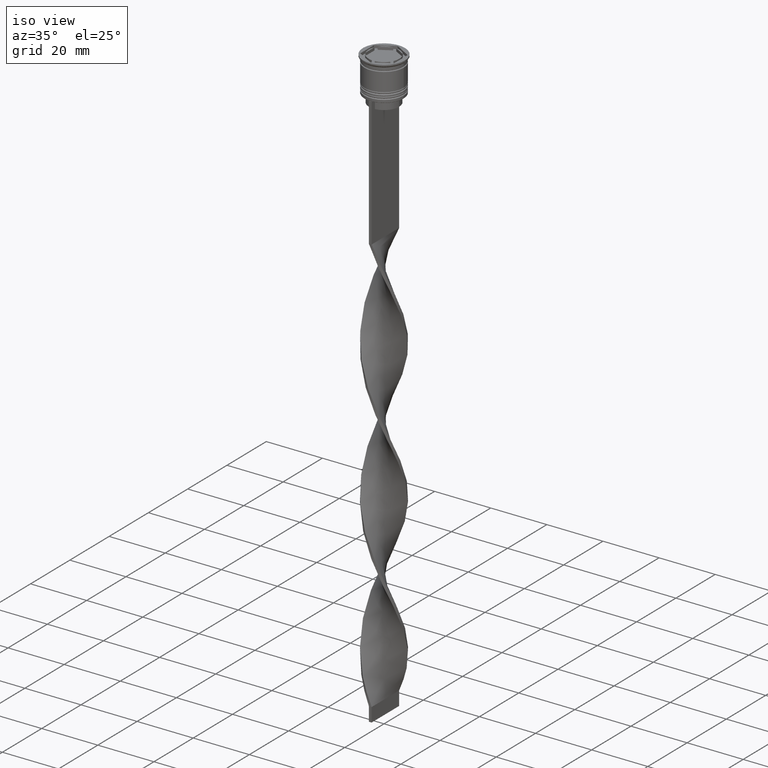
[diagram: clean part render]
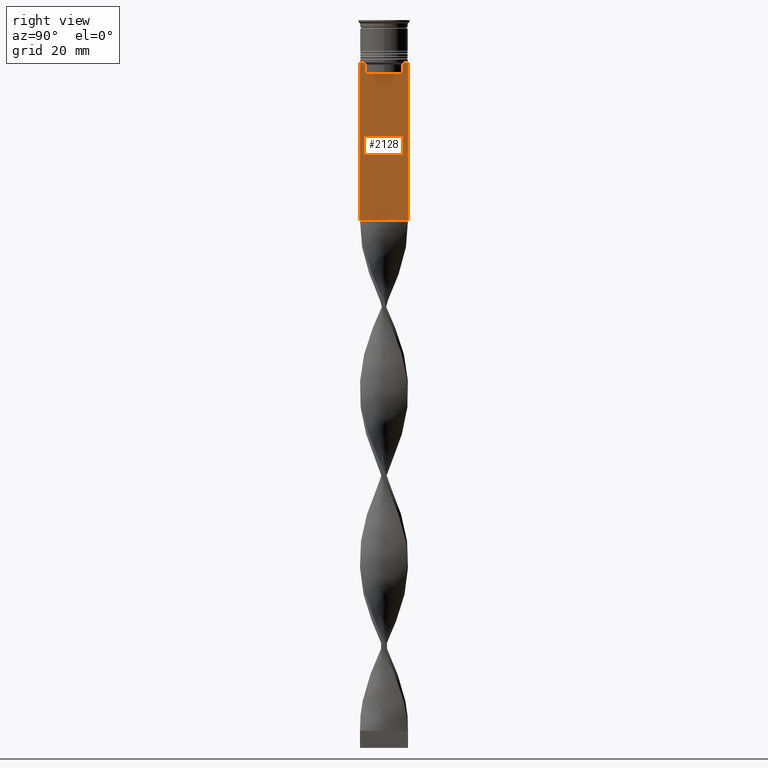
[diagram: tour spotlight — one face highlighted and labeled with its STEP entity id]
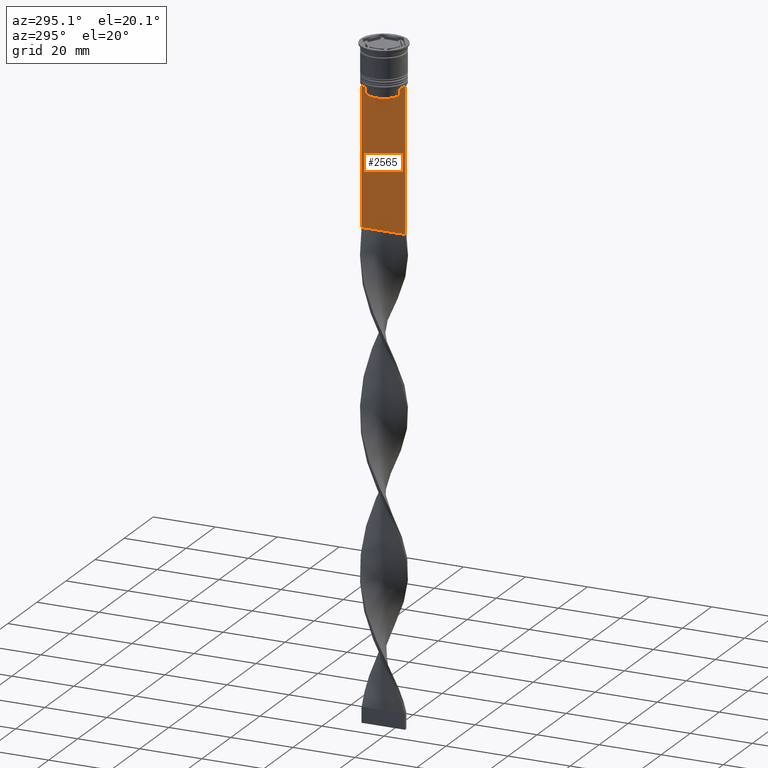
[diagram: tour spotlight — one face highlighted and labeled with its STEP entity id]
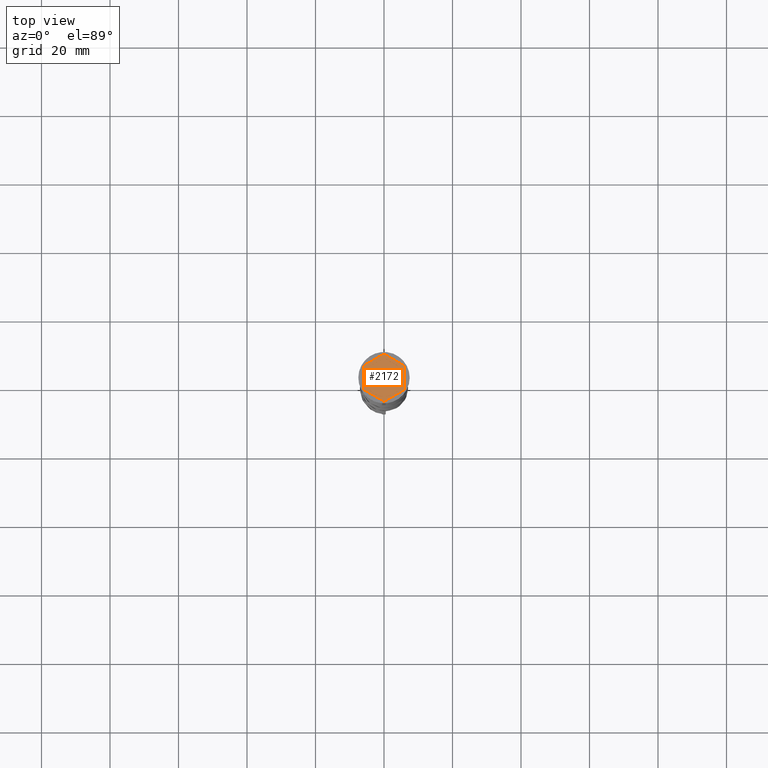
[diagram: tour spotlight — one face highlighted and labeled with its STEP entity id]
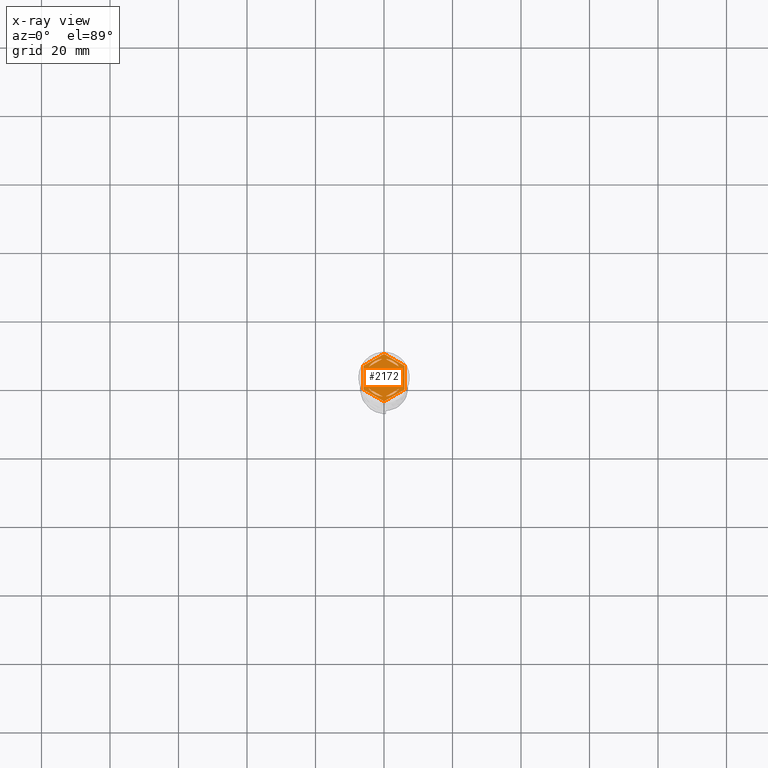
[diagram: x-ray of the same camera — body ghosted, this tour face saturated]
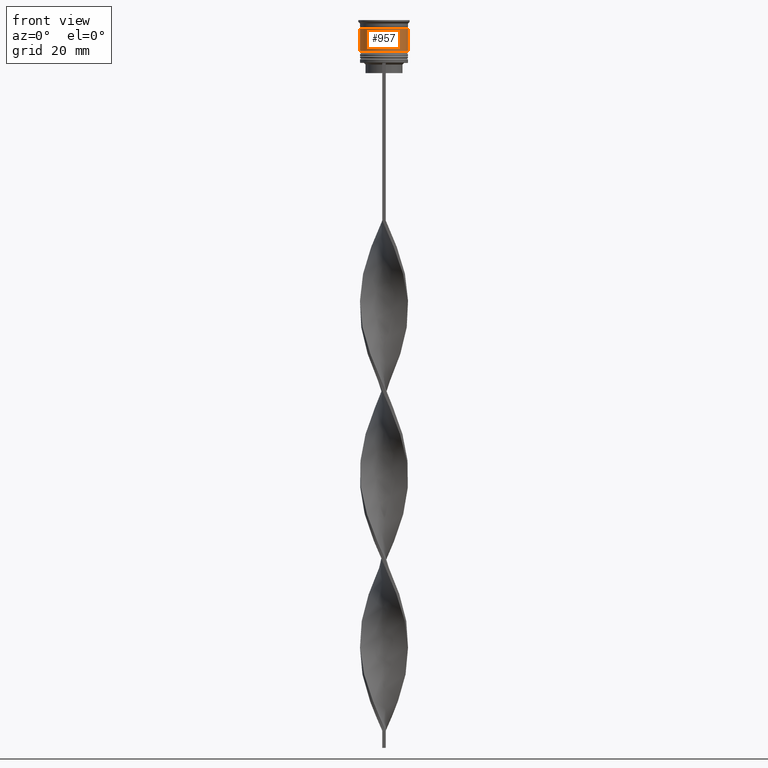
[diagram: tour spotlight — one face highlighted and labeled with its STEP entity id]
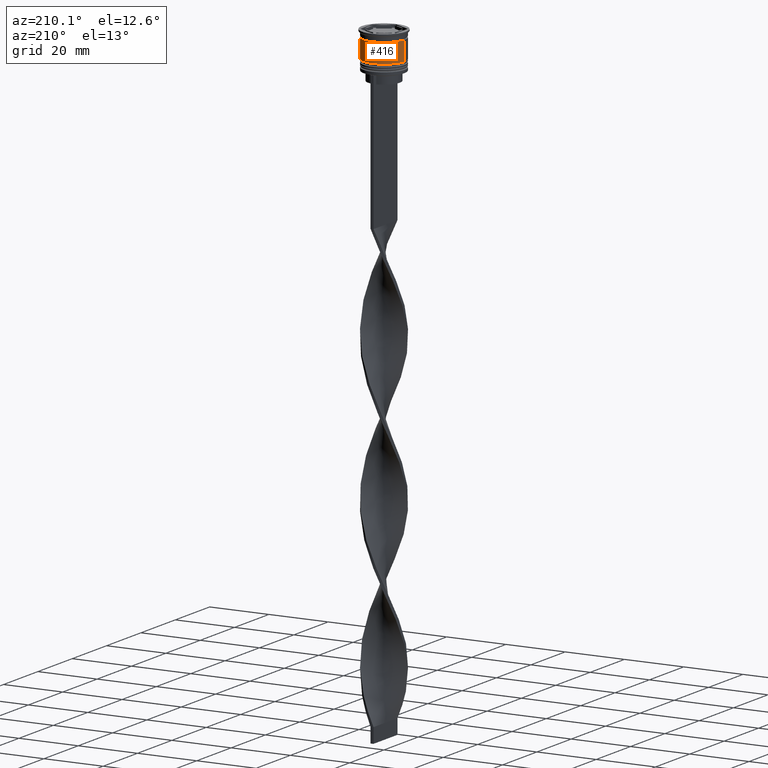
[diagram: tour spotlight — one face highlighted and labeled with its STEP entity id]
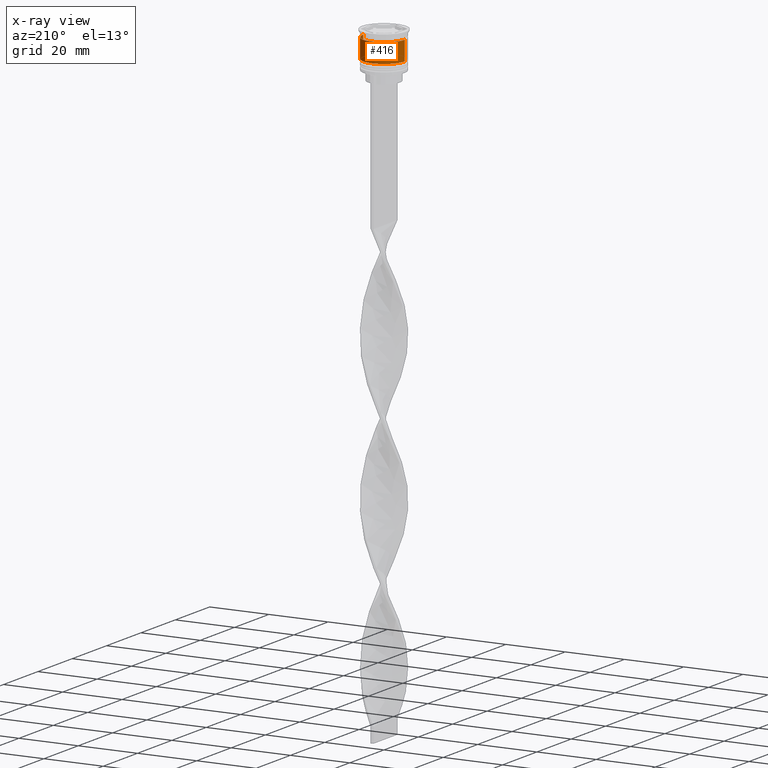
[diagram: x-ray of the same camera — body ghosted, this tour face saturated]
A machine part: a face-by-face anatomy tour. The part has 98 B-rep faces; the first image is the clean iso view, then the 5 largest visible faces are spotlighted one at a time (largest first), each with its STEP entity span.

Face 1 — right view, entity #2128. In plain terms, the highlighted planar face has unit normal (-1, 0, 0).
Definition (entity closure, byte-faithful):
#19 = ORIENTED_EDGE ( 'NONE', *, *, #229, .T. ) ;
#20 = DIRECTION ( 'NONE',  ( -0.000000000000000000, -0.000000000000000000, 1.000000000000000000 ) ) ;
#95 = VERTEX_POINT ( 'NONE', #2700 ) ;
#229 = EDGE_CURVE ( 'NONE', #1521, #2752, #693, .T. ) ;
#236 = ORIENTED_EDGE ( 'NONE', *, *, #3496, .T. ) ;
#250 = LINE ( 'NONE', #2978, #2721 ) ;
#318 = EDGE_CURVE ( 'NONE', #1032, #2752, #2300, .T. ) ;
#458 = VERTEX_POINT ( 'NONE', #3102 ) ;
#480 = VECTOR ( 'NONE', #3802, 1000.000000000000000 ) ;
#686 = VERTEX_POINT ( 'NONE', #1171 ) ;
#693 = LINE ( 'NONE', #1868, #2378 ) ;
#736 = VERTEX_POINT ( 'NONE', #3255 ) ;
#760 = EDGE_CURVE ( 'NONE', #951, #95, #3886, .T. ) ;
#761 = CARTESIAN_POINT ( 'NONE',  ( 0.5000000000000000000, -6.999999999999997335, -12.50000000000000000 ) ) ;
#834 = LINE ( 'NONE', #1174, #480 ) ;
#863 = EDGE_CURVE ( 'NONE', #736, #1866, #3175, .T. ) ;
#887 = EDGE_CURVE ( 'NONE', #458, #3247, #1065, .T. ) ;
#901 = ORIENTED_EDGE ( 'NONE', *, *, #760, .T. ) ;
#951 = VERTEX_POINT ( 'NONE', #1611 ) ;
#968 = CARTESIAN_POINT ( 'NONE',  ( 0.5000000000000000000, 5.711478846560141598, -12.66669470477064685 ) ) ;
#973 = AXIS2_PLACEMENT_3D ( 'NONE', #3862, #3552, #2338 ) ;
#1032 = VERTEX_POINT ( 'NONE', #3702 ) ;
#1065 = LINE ( 'NONE', #1215, #2890 ) ;
#1125 = EDGE_CURVE ( 'NONE', #1606, #736, #1680, .T. ) ;
#1132 = CARTESIAN_POINT ( 'NONE',  ( 0.5000000000000000000, -6.999999999999997335, -12.50000000000000000 ) ) ;
#1171 = CARTESIAN_POINT ( 'NONE',  ( 0.5000000000000000000, 5.376802023508029826, -15.50000000000000000 ) ) ;
#1174 = CARTESIAN_POINT ( 'NONE',  ( 0.5000000000000000000, -6.999999999999997335, -12.50000000000000000 ) ) ;
#1179 = CARTESIAN_POINT ( 'NONE',  ( 0.5000000000000000000, 7.000000000000002665, 1.535668847618198329 ) ) ;
#1215 = CARTESIAN_POINT ( 'NONE',  ( 0.5000000000000000000, -5.376802023508029826, 0.000000000000000000 ) ) ;
#1273 = VERTEX_POINT ( 'NONE', #2343 ) ;
#1293 = ORIENTED_EDGE ( 'NONE', *, *, #1125, .T. ) ;
#1485 = CARTESIAN_POINT ( 'NONE',  ( 0.5000000000000000000, -6.999999999999997335, -58.50000000000000000 ) ) ;
#1521 = VERTEX_POINT ( 'NONE', #1485 ) ;
#1568 = B_SPLINE_CURVE_WITH_KNOTS ( 'NONE', 3,
 ( #2188, #2596, #3094, #2888 ),
 .UNSPECIFIED., .F., .F.,
 ( 4, 4 ),
 ( 0.02539176325380714666, 0.02610162431828674801 ),
 .UNSPECIFIED. ) ;
#1604 = CARTESIAN_POINT ( 'NONE',  ( 0.5000000000000000000, 7.000000000000002665, -58.50000000000000000 ) ) ;
#1606 = VERTEX_POINT ( 'NONE', #1792 ) ;
#1611 = CARTESIAN_POINT ( 'NONE',  ( 0.5000000000000000000, 5.878775382679629402, -12.50000000000000000 ) ) ;
#1679 = EDGE_LOOP ( 'NONE', ( #3415, #901, #3462, #2303, #3031, #3093, #1293, #3266, #3662, #19, #2567, #236 ) ) ;
#1680 = LINE ( 'NONE', #1132, #3253 ) ;
#1703 = CARTESIAN_POINT ( 'NONE',  ( 0.5000000000000000000, 5.376802023508029826, 0.000000000000000000 ) ) ;
#1789 = DIRECTION ( 'NONE',  ( 0.000000000000000000, 0.000000000000000000, -1.000000000000000000 ) ) ;
#1792 = CARTESIAN_POINT ( 'NONE',  ( 0.5000000000000000000, -5.878775382679629402, -12.50000000000000000 ) ) ;
#1866 = VERTEX_POINT ( 'NONE', #2943 ) ;
#1868 = CARTESIAN_POINT ( 'NONE',  ( 0.5000000000000000000, -6.999999999999997335, -58.50000000000000000 ) ) ;
#1872 = CARTESIAN_POINT ( 'NONE',  ( 0.5000000000000000000, 5.544156989057553275, -12.83336397825725861 ) ) ;
#2128 = ADVANCED_FACE ( 'NONE', ( #3154 ), #2864, .F. ) ;
#2142 = VECTOR ( 'NONE', #3586, 1000.000000000000000 ) ;
#2188 = CARTESIAN_POINT ( 'NONE',  ( 0.5000000000000000000, -5.376802023508029826, -13.00000000000000178 ) ) ;
#2198 = VECTOR ( 'NONE', #2696, 1000.000000000000000 ) ;
#2243 = VECTOR ( 'NONE', #1789, 1000.000000000000000 ) ;
#2300 = LINE ( 'NONE', #1179, #2243 ) ;
#2303 = ORIENTED_EDGE ( 'NONE', *, *, #3284, .T. ) ;
#2318 = CARTESIAN_POINT ( 'NONE',  ( 0.5000000000000000000, -6.999999999999997335, -12.50000000000000000 ) ) ;
#2338 = DIRECTION ( 'NONE',  ( 0.000000000000000000, 0.000000000000000000, 1.000000000000000000 ) ) ;
#2343 = CARTESIAN_POINT ( 'NONE',  ( 0.5000000000000000000, 6.881860213634102053, -12.50000000000000000 ) ) ;
#2378 = VECTOR ( 'NONE', #2792, 1000.000000000000000 ) ;
#2493 = CARTESIAN_POINT ( 'NONE',  ( 0.5000000000000000000, 5.878775382679629402, -12.50000000000000000 ) ) ;
#2567 = ORIENTED_EDGE ( 'NONE', *, *, #318, .F. ) ;
#2585 = DIRECTION ( 'NONE',  ( 0.000000000000000000, -1.000000000000000000, 0.000000000000000000 ) ) ;
#2596 = CARTESIAN_POINT ( 'NONE',  ( 0.5000000000000000000, -5.544156999454441959, -12.83336396790503642 ) ) ;
#2608 = DIRECTION ( 'NONE',  ( 0.000000000000000000, 0.000000000000000000, -1.000000000000000000 ) ) ;
#2628 = LINE ( 'NONE', #2318, #3846 ) ;
#2653 = CARTESIAN_POINT ( 'NONE',  ( 0.5000000000000000000, 5.400000000000003908, -15.50000000000000000 ) ) ;
#2696 = DIRECTION ( 'NONE',  ( 0.000000000000000000, -1.000000000000000000, 0.000000000000000000 ) ) ;
#2700 = CARTESIAN_POINT ( 'NONE',  ( 0.5000000000000000000, 5.376802023508029826, -13.00000000000000178 ) ) ;
#2721 = VECTOR ( 'NONE', #2608, 1000.000000000000000 ) ;
#2752 = VERTEX_POINT ( 'NONE', #1604 ) ;
#2792 = DIRECTION ( 'NONE',  ( 0.000000000000000000, 1.000000000000000000, 0.000000000000000000 ) ) ;
#2832 = DIRECTION ( 'NONE',  ( 0.000000000000000000, -1.000000000000000000, 0.000000000000000000 ) ) ;
#2864 = PLANE ( 'NONE',  #973 ) ;
#2888 = CARTESIAN_POINT ( 'NONE',  ( 0.5000000000000000000, -5.878775382679629402, -12.50000000000000000 ) ) ;
#2890 = VECTOR ( 'NONE', #20, 1000.000000000000000 ) ;
#2941 = LINE ( 'NONE', #2653, #2198 ) ;
#2943 = CARTESIAN_POINT ( 'NONE',  ( 0.5000000000000000000, -6.999999999999997335, -12.50000000000000000 ) ) ;
#2978 = CARTESIAN_POINT ( 'NONE',  ( 0.5000000000000000000, -6.999999999999997335, 1.535668847618198329 ) ) ;
#3031 = ORIENTED_EDGE ( 'NONE', *, *, #887, .T. ) ;
#3057 = CARTESIAN_POINT ( 'NONE',  ( 0.5000000000000000000, 5.376802023508029826, -13.00000000000000178 ) ) ;
#3093 = ORIENTED_EDGE ( 'NONE', *, *, #3881, .T. ) ;
#3094 = CARTESIAN_POINT ( 'NONE',  ( 0.5000000000000000000, -5.711478856069293286, -12.66669469529570335 ) ) ;
#3102 = CARTESIAN_POINT ( 'NONE',  ( 0.5000000000000000000, -5.376802023508029826, -15.50000000000000000 ) ) ;
#3154 = FACE_OUTER_BOUND ( 'NONE', #1679, .T. ) ;
#3175 = LINE ( 'NONE', #761, #3644 ) ;
#3247 = VERTEX_POINT ( 'NONE', #3853 ) ;
#3253 = VECTOR ( 'NONE', #2585, 1000.000000000000000 ) ;
#3255 = CARTESIAN_POINT ( 'NONE',  ( 0.5000000000000000000, -6.881860213634102053, -12.50000000000000000 ) ) ;
#3266 = ORIENTED_EDGE ( 'NONE', *, *, #863, .T. ) ;
#3284 = EDGE_CURVE ( 'NONE', #686, #458, #2941, .T. ) ;
#3285 = LINE ( 'NONE', #1703, #2142 ) ;
#3415 = ORIENTED_EDGE ( 'NONE', *, *, #3447, .T. ) ;
#3420 = EDGE_CURVE ( 'NONE', #1866, #1521, #250, .T. ) ;
#3447 = EDGE_CURVE ( 'NONE', #1273, #951, #2628, .T. ) ;
#3462 = ORIENTED_EDGE ( 'NONE', *, *, #3475, .T. ) ;
#3475 = EDGE_CURVE ( 'NONE', #95, #686, #3285, .T. ) ;
#3496 = EDGE_CURVE ( 'NONE', #1032, #1273, #834, .T. ) ;
#3519 = DIRECTION ( 'NONE',  ( 0.000000000000000000, -1.000000000000000000, 0.000000000000000000 ) ) ;
#3552 = DIRECTION ( 'NONE',  ( -1.000000000000000000, 0.000000000000000000, 0.000000000000000000 ) ) ;
#3586 = DIRECTION ( 'NONE',  ( 0.000000000000000000, 0.000000000000000000, -1.000000000000000000 ) ) ;
#3644 = VECTOR ( 'NONE', #2832, 1000.000000000000000 ) ;
#3662 = ORIENTED_EDGE ( 'NONE', *, *, #3420, .T. ) ;
#3702 = CARTESIAN_POINT ( 'NONE',  ( 0.5000000000000000000, 7.000000000000002665, -12.50000000000000000 ) ) ;
#3802 = DIRECTION ( 'NONE',  ( 0.000000000000000000, -1.000000000000000000, 0.000000000000000000 ) ) ;
#3846 = VECTOR ( 'NONE', #3519, 1000.000000000000000 ) ;
#3853 = CARTESIAN_POINT ( 'NONE',  ( 0.5000000000000000000, -5.376802023508029826, -13.00000000000000178 ) ) ;
#3862 = CARTESIAN_POINT ( 'NONE',  ( 0.5000000000000000000, -6.999999999999997335, 1.535668847618198329 ) ) ;
#3881 = EDGE_CURVE ( 'NONE', #3247, #1606, #1568, .T. ) ;
#3886 = B_SPLINE_CURVE_WITH_KNOTS ( 'NONE', 3,
 ( #2493, #968, #1872, #3057 ),
 .UNSPECIFIED., .F., .F.,
 ( 4, 4 ),
 ( 0.01003009312103698807, 0.01073859663834952557 ),
 .UNSPECIFIED. ) ;

Face 2 — auxiliary view, entity #2565. In plain terms, the highlighted planar face has unit normal (-1, 0, 0).
Definition (entity closure, byte-faithful):
#9 = CARTESIAN_POINT ( 'NONE',  ( -0.5000000000000000000, -6.999999999999997335, -58.50000000000000000 ) ) ;
#18 = VECTOR ( 'NONE', #2358, 1000.000000000000000 ) ;
#49 = LINE ( 'NONE', #384, #2019 ) ;
#62 = VERTEX_POINT ( 'NONE', #3635 ) ;
#119 = DIRECTION ( 'NONE',  ( 0.000000000000000000, 0.000000000000000000, -1.000000000000000000 ) ) ;
#180 = ORIENTED_EDGE ( 'NONE', *, *, #2548, .F. ) ;
#188 = CARTESIAN_POINT ( 'NONE',  ( -0.5000000000000000000, -5.376802023508029826, -13.00000000000000178 ) ) ;
#257 = ORIENTED_EDGE ( 'NONE', *, *, #2376, .F. ) ;
#259 = CARTESIAN_POINT ( 'NONE',  ( -0.5000000000000000000, 7.000000000000002665, -58.50000000000000000 ) ) ;
#288 = PLANE ( 'NONE',  #3268 ) ;
#309 = LINE ( 'NONE', #2953, #18 ) ;
#328 = ORIENTED_EDGE ( 'NONE', *, *, #1383, .F. ) ;
#331 = LINE ( 'NONE', #3538, #3646 ) ;
#336 = CARTESIAN_POINT ( 'NONE',  ( -0.5000000000000000000, 5.878775382679629402, -12.50000000000000000 ) ) ;
#342 = VECTOR ( 'NONE', #119, 1000.000000000000000 ) ;
#384 = CARTESIAN_POINT ( 'NONE',  ( -0.5000000000000000000, 5.376802023508029826, 0.000000000000000000 ) ) ;
#418 = CARTESIAN_POINT ( 'NONE',  ( -0.5000000000000000000, -5.376802023508029826, -15.50000000000000000 ) ) ;
#419 = VECTOR ( 'NONE', #1840, 1000.000000000000000 ) ;
#508 = CARTESIAN_POINT ( 'NONE',  ( -0.5000000000000000000, 5.376802023508029826, -13.00000000000000178 ) ) ;
#586 = DIRECTION ( 'NONE',  ( 0.000000000000000000, -1.000000000000000000, 0.000000000000000000 ) ) ;
#637 = CARTESIAN_POINT ( 'NONE',  ( -0.5000000000000000000, 5.544156989057553275, -12.83336397825725861 ) ) ;
#721 = LINE ( 'NONE', #3087, #342 ) ;
#859 = CARTESIAN_POINT ( 'NONE',  ( -0.5000000000000000000, -5.376802023508029826, -13.00000000000000178 ) ) ;
#884 = VERTEX_POINT ( 'NONE', #1356 ) ;
#1030 = EDGE_CURVE ( 'NONE', #2939, #1901, #721, .T. ) ;
#1090 = ORIENTED_EDGE ( 'NONE', *, *, #2059, .F. ) ;
#1126 = LINE ( 'NONE', #2289, #1592 ) ;
#1189 = CARTESIAN_POINT ( 'NONE',  ( -0.5000000000000000000, -5.376802023508029826, 0.000000000000000000 ) ) ;
#1226 = VECTOR ( 'NONE', #3578, 1000.000000000000000 ) ;
#1227 = CARTESIAN_POINT ( 'NONE',  ( -0.5000000000000000000, -6.999999999999997335, -12.50000000000000000 ) ) ;
#1246 = ORIENTED_EDGE ( 'NONE', *, *, #2219, .F. ) ;
#1295 = EDGE_CURVE ( 'NONE', #1846, #2315, #331, .T. ) ;
#1338 = DIRECTION ( 'NONE',  ( 0.000000000000000000, -1.000000000000000000, 0.000000000000000000 ) ) ;
#1354 = VERTEX_POINT ( 'NONE', #418 ) ;
#1356 = CARTESIAN_POINT ( 'NONE',  ( -0.5000000000000000000, 5.376802023508029826, -15.50000000000000000 ) ) ;
#1383 = EDGE_CURVE ( 'NONE', #2315, #3805, #1747, .T. ) ;
#1441 = ORIENTED_EDGE ( 'NONE', *, *, #3819, .F. ) ;
#1592 = VECTOR ( 'NONE', #1986, 1000.000000000000000 ) ;
#1602 = VERTEX_POINT ( 'NONE', #2430 ) ;
#1603 = DIRECTION ( 'NONE',  ( 0.000000000000000000, 0.000000000000000000, -1.000000000000000000 ) ) ;
#1627 = LINE ( 'NONE', #2818, #1897 ) ;
#1737 = CARTESIAN_POINT ( 'NONE',  ( -0.5000000000000000000, -6.999999999999997335, -12.50000000000000000 ) ) ;
#1747 = LINE ( 'NONE', #2680, #3199 ) ;
#1777 = DIRECTION ( 'NONE',  ( 0.000000000000000000, 0.000000000000000000, 1.000000000000000000 ) ) ;
#1795 = CARTESIAN_POINT ( 'NONE',  ( -0.5000000000000000000, 7.000000000000002665, -12.50000000000000000 ) ) ;
#1814 = VERTEX_POINT ( 'NONE', #508 ) ;
#1840 = DIRECTION ( 'NONE',  ( -0.000000000000000000, -0.000000000000000000, 1.000000000000000000 ) ) ;
#1846 = VERTEX_POINT ( 'NONE', #2606 ) ;
#1897 = VECTOR ( 'NONE', #1338, 1000.000000000000000 ) ;
#1901 = VERTEX_POINT ( 'NONE', #259 ) ;
#1986 = DIRECTION ( 'NONE',  ( 0.000000000000000000, -1.000000000000000000, 0.000000000000000000 ) ) ;
#2019 = VECTOR ( 'NONE', #1603, 1000.000000000000000 ) ;
#2041 = LINE ( 'NONE', #1227, #2195 ) ;
#2052 = DIRECTION ( 'NONE',  ( 0.000000000000000000, 0.000000000000000000, -1.000000000000000000 ) ) ;
#2058 = FACE_OUTER_BOUND ( 'NONE', #2899, .T. ) ;
#2059 = EDGE_CURVE ( 'NONE', #3498, #62, #2602, .T. ) ;
#2073 = VERTEX_POINT ( 'NONE', #3424 ) ;
#2192 = ORIENTED_EDGE ( 'NONE', *, *, #2679, .F. ) ;
#2195 = VECTOR ( 'NONE', #3237, 1000.000000000000000 ) ;
#2219 = EDGE_CURVE ( 'NONE', #2939, #1602, #1627, .T. ) ;
#2289 = CARTESIAN_POINT ( 'NONE',  ( -0.5000000000000000000, 5.400000000000003908, -15.50000000000000000 ) ) ;
#2297 = ORIENTED_EDGE ( 'NONE', *, *, #3155, .F. ) ;
#2315 = VERTEX_POINT ( 'NONE', #1737 ) ;
#2358 = DIRECTION ( 'NONE',  ( 0.000000000000000000, -1.000000000000000000, 0.000000000000000000 ) ) ;
#2364 = ORIENTED_EDGE ( 'NONE', *, *, #2623, .F. ) ;
#2376 = EDGE_CURVE ( 'NONE', #884, #1354, #1126, .T. ) ;
#2430 = CARTESIAN_POINT ( 'NONE',  ( -0.5000000000000000000, 6.881860213634102053, -12.50000000000000000 ) ) ;
#2548 = EDGE_CURVE ( 'NONE', #62, #1846, #309, .T. ) ;
#2565 = ADVANCED_FACE ( 'NONE', ( #2058 ), #288, .T. ) ;
#2602 = B_SPLINE_CURVE_WITH_KNOTS ( 'NONE', 3,
 ( #188, #3128, #3768, #3484 ),
 .UNSPECIFIED., .F., .F.,
 ( 4, 4 ),
 ( 0.02539176325380714666, 0.02610162431828674801 ),
 .UNSPECIFIED. ) ;
#2606 = CARTESIAN_POINT ( 'NONE',  ( -0.5000000000000000000, -6.881860213634102053, -12.50000000000000000 ) ) ;
#2623 = EDGE_CURVE ( 'NONE', #3805, #1901, #2686, .T. ) ;
#2625 = EDGE_CURVE ( 'NONE', #1602, #2073, #2041, .T. ) ;
#2665 = DIRECTION ( 'NONE',  ( -1.000000000000000000, 0.000000000000000000, 0.000000000000000000 ) ) ;
#2679 = EDGE_CURVE ( 'NONE', #1354, #3498, #3600, .T. ) ;
#2680 = CARTESIAN_POINT ( 'NONE',  ( -0.5000000000000000000, -6.999999999999997335, 1.535668847618198329 ) ) ;
#2686 = LINE ( 'NONE', #9, #1226 ) ;
#2818 = CARTESIAN_POINT ( 'NONE',  ( -0.5000000000000000000, -6.999999999999997335, -12.50000000000000000 ) ) ;
#2899 = EDGE_LOOP ( 'NONE', ( #2297, #3867, #1246, #3514, #2364, #328, #3325, #180, #1090, #2192, #257, #1441 ) ) ;
#2922 = CARTESIAN_POINT ( 'NONE',  ( -0.5000000000000000000, 5.376802023508029826, -13.00000000000000178 ) ) ;
#2924 = B_SPLINE_CURVE_WITH_KNOTS ( 'NONE', 3,
 ( #336, #3876, #637, #2922 ),
 .UNSPECIFIED., .F., .F.,
 ( 4, 4 ),
 ( 0.01003009312103698807, 0.01073859663834952557 ),
 .UNSPECIFIED. ) ;
#2939 = VERTEX_POINT ( 'NONE', #1795 ) ;
#2953 = CARTESIAN_POINT ( 'NONE',  ( -0.5000000000000000000, -6.999999999999997335, -12.50000000000000000 ) ) ;
#3039 = CARTESIAN_POINT ( 'NONE',  ( -0.5000000000000000000, -6.999999999999997335, -58.50000000000000000 ) ) ;
#3087 = CARTESIAN_POINT ( 'NONE',  ( -0.5000000000000000000, 7.000000000000002665, 1.535668847618198329 ) ) ;
#3128 = CARTESIAN_POINT ( 'NONE',  ( -0.5000000000000000000, -5.544156999454441959, -12.83336396790503642 ) ) ;
#3155 = EDGE_CURVE ( 'NONE', #2073, #1814, #2924, .T. ) ;
#3199 = VECTOR ( 'NONE', #2052, 1000.000000000000000 ) ;
#3237 = DIRECTION ( 'NONE',  ( 0.000000000000000000, -1.000000000000000000, 0.000000000000000000 ) ) ;
#3268 = AXIS2_PLACEMENT_3D ( 'NONE', #3618, #2665, #1777 ) ;
#3325 = ORIENTED_EDGE ( 'NONE', *, *, #1295, .F. ) ;
#3424 = CARTESIAN_POINT ( 'NONE',  ( -0.5000000000000000000, 5.878775382679629402, -12.50000000000000000 ) ) ;
#3484 = CARTESIAN_POINT ( 'NONE',  ( -0.5000000000000000000, -5.878775382679629402, -12.50000000000000000 ) ) ;
#3498 = VERTEX_POINT ( 'NONE', #859 ) ;
#3514 = ORIENTED_EDGE ( 'NONE', *, *, #1030, .T. ) ;
#3538 = CARTESIAN_POINT ( 'NONE',  ( -0.5000000000000000000, -6.999999999999997335, -12.50000000000000000 ) ) ;
#3578 = DIRECTION ( 'NONE',  ( 0.000000000000000000, 1.000000000000000000, 0.000000000000000000 ) ) ;
#3600 = LINE ( 'NONE', #1189, #419 ) ;
#3618 = CARTESIAN_POINT ( 'NONE',  ( -0.5000000000000000000, -6.999999999999997335, 1.535668847618198329 ) ) ;
#3635 = CARTESIAN_POINT ( 'NONE',  ( -0.5000000000000000000, -5.878775382679629402, -12.50000000000000000 ) ) ;
#3646 = VECTOR ( 'NONE', #586, 1000.000000000000000 ) ;
#3768 = CARTESIAN_POINT ( 'NONE',  ( -0.5000000000000000000, -5.711478856069293286, -12.66669469529570335 ) ) ;
#3805 = VERTEX_POINT ( 'NONE', #3039 ) ;
#3819 = EDGE_CURVE ( 'NONE', #1814, #884, #49, .T. ) ;
#3867 = ORIENTED_EDGE ( 'NONE', *, *, #2625, .F. ) ;
#3876 = CARTESIAN_POINT ( 'NONE',  ( -0.5000000000000000000, 5.711478846560141598, -12.66669470477064685 ) ) ;

Face 3 — top view, entity #2172. An x-ray twin of the same camera follows (body ghosted, this face saturated) — the face is partly hidden behind the body. In plain terms, the highlighted planar face has unit normal (0, 0, 1).
Definition (entity closure, byte-faithful):
#10 = VECTOR ( 'NONE', #1669, 1000.000000000000000 ) ;
#24 = ORIENTED_EDGE ( 'NONE', *, *, #3389, .F. ) ;
#45 = ORIENTED_EDGE ( 'NONE', *, *, #2471, .F. ) ;
#47 = CARTESIAN_POINT ( 'NONE',  ( 5.999999999999998224, -3.464101615137753942, -1.000000000000000000 ) ) ;
#81 = DIRECTION ( 'NONE',  ( 0.000000000000000000, 0.000000000000000000, 1.000000000000000000 ) ) ;
#87 = EDGE_CURVE ( 'NONE', #1183, #1063, #3329, .T. ) ;
#125 = ORIENTED_EDGE ( 'NONE', *, *, #1708, .T. ) ;
#198 = EDGE_LOOP ( 'NONE', ( #3627, #2779 ) ) ;
#212 = VECTOR ( 'NONE', #3666, 1000.000000000000227 ) ;
#222 = AXIS2_PLACEMENT_3D ( 'NONE', #3898, #1138, #319 ) ;
#243 = DIRECTION ( 'NONE',  ( -3.004629197474317076E-16, -1.000000000000000000, 0.000000000000000000 ) ) ;
#249 = CARTESIAN_POINT ( 'NONE',  ( 6.000000000000000000, 3.464101615137753942, -1.000000000000000000 ) ) ;
#305 = DIRECTION ( 'NONE',  ( 1.000000000000000000, 0.000000000000000000, 0.000000000000000000 ) ) ;
#319 = DIRECTION ( 'NONE',  ( 1.000000000000000000, 0.000000000000000000, 0.000000000000000000 ) ) ;
#340 = ORIENTED_EDGE ( 'NONE', *, *, #889, .F. ) ;
#371 = EDGE_CURVE ( 'NONE', #2360, #3791, #1578, .T. ) ;
#375 = CARTESIAN_POINT ( 'NONE',  ( -4.484313483298445036, 3.184483095183233470, -1.000000000000000888 ) ) ;
#408 = VERTEX_POINT ( 'NONE', #1089 ) ;
#420 = DIRECTION ( 'NONE',  ( -0.8660254037844385966, 0.5000000000000001110, 0.000000000000000000 ) ) ;
#437 = CARTESIAN_POINT ( 'NONE',  ( 0.000000000000000000, 0.000000000000000000, -1.000000000000000000 ) ) ;
#489 = ORIENTED_EDGE ( 'NONE', *, *, #1529, .F. ) ;
#566 = ORIENTED_EDGE ( 'NONE', *, *, #1527, .T. ) ;
#585 = CARTESIAN_POINT ( 'NONE',  ( -6.000000000000000000, 3.464101615137752166, -1.000000000000000000 ) ) ;
#607 = VECTOR ( 'NONE', #3660, 1000.000000000000000 ) ;
#612 = EDGE_CURVE ( 'NONE', #882, #2379, #1494, .T. ) ;
#620 = ORIENTED_EDGE ( 'NONE', *, *, #612, .T. ) ;
#621 = DIRECTION ( 'NONE',  ( 0.8660254037844385966, 0.5000000000000000000, 0.000000000000000000 ) ) ;
#667 = CIRCLE ( 'NONE', #976, 5.500000000000001776 ) ;
#697 = CARTESIAN_POINT ( 'NONE',  ( -5.000000000000000888, 2.886751345948129099, -1.000000000000000888 ) ) ;
#725 = VERTEX_POINT ( 'NONE', #2537 ) ;
#737 = LINE ( 'NONE', #1365, #212 ) ;
#749 = ORIENTED_EDGE ( 'NONE', *, *, #1228, .T. ) ;
#783 = VERTEX_POINT ( 'NONE', #3027 ) ;
#786 = AXIS2_PLACEMENT_3D ( 'NONE', #2327, #2983, #2715 ) ;
#795 = CARTESIAN_POINT ( 'NONE',  ( 0.5156865167015596274, 5.475770942661155161, -1.000000000000000888 ) ) ;
#814 = EDGE_CURVE ( 'NONE', #2379, #1337, #1997, .T. ) ;
#815 = CARTESIAN_POINT ( 'NONE',  ( 5.999999999999998224, -3.464101615137753942, -1.000000000000000000 ) ) ;
#829 = DIRECTION ( 'NONE',  ( 1.000000000000000000, 0.000000000000000000, 0.000000000000000000 ) ) ;
#844 = VERTEX_POINT ( 'NONE', #3731 ) ;
#867 = LINE ( 'NONE', #1185, #1157 ) ;
#882 = VERTEX_POINT ( 'NONE', #1045 ) ;
#889 = EDGE_CURVE ( 'NONE', #725, #1287, #1216, .T. ) ;
#899 = DIRECTION ( 'NONE',  ( 0.000000000000000000, 0.000000000000000000, 1.000000000000000000 ) ) ;
#913 = VERTEX_POINT ( 'NONE', #1035 ) ;
#926 = EDGE_LOOP ( 'NONE', ( #3482, #489 ) ) ;
#976 = AXIS2_PLACEMENT_3D ( 'NONE', #2603, #2934, #829 ) ;
#1035 = CARTESIAN_POINT ( 'NONE',  ( 0.000000000000000000, 6.928203230275506996, -1.000000000000000000 ) ) ;
#1045 = CARTESIAN_POINT ( 'NONE',  ( -6.000000000000000000, 3.464101615137752166, -1.000000000000000000 ) ) ;
#1059 = EDGE_LOOP ( 'NONE', ( #340, #24 ) ) ;
#1063 = VERTEX_POINT ( 'NONE', #249 ) ;
#1079 = ORIENTED_EDGE ( 'NONE', *, *, #3230, .F. ) ;
#1089 = CARTESIAN_POINT ( 'NONE',  ( -4.484313483298445036, -3.184483095183233470, -1.000000000000000888 ) ) ;
#1138 = DIRECTION ( 'NONE',  ( 0.000000000000000000, 0.000000000000000000, 1.000000000000000000 ) ) ;
#1148 = ORIENTED_EDGE ( 'NONE', *, *, #3234, .F. ) ;
#1157 = VECTOR ( 'NONE', #1200, 1000.000000000000114 ) ;
#1164 = VECTOR ( 'NONE', #1719, 1000.000000000000114 ) ;
#1183 = VERTEX_POINT ( 'NONE', #815 ) ;
#1185 = CARTESIAN_POINT ( 'NONE',  ( -1.734723475976807094E-15, -5.773502691896258199, -1.000000000000000888 ) ) ;
#1200 = DIRECTION ( 'NONE',  ( -0.8660254037844387076, -0.4999999999999997224, 0.000000000000000000 ) ) ;
#1216 = CIRCLE ( 'NONE', #2766, 5.500000000000001776 ) ;
#1228 = EDGE_CURVE ( 'NONE', #1063, #913, #1953, .T. ) ;
#1287 = VERTEX_POINT ( 'NONE', #375 ) ;
#1301 = CARTESIAN_POINT ( 'NONE',  ( 4.999999999999999112, -2.291287847477924355, -1.000000000000000888 ) ) ;
#1304 = FACE_OUTER_BOUND ( 'NONE', #1923, .T. ) ;
#1309 = LINE ( 'NONE', #3088, #2902 ) ;
#1337 = VERTEX_POINT ( 'NONE', #2178 ) ;
#1351 = VECTOR ( 'NONE', #1632, 1000.000000000000000 ) ;
#1365 = CARTESIAN_POINT ( 'NONE',  ( 0.000000000000000000, 6.928203230275506996, -1.000000000000000000 ) ) ;
#1393 = CARTESIAN_POINT ( 'NONE',  ( -6.000000000000000000, -3.464101615137755719, -1.000000000000000000 ) ) ;
#1400 = AXIS2_PLACEMENT_3D ( 'NONE', #2611, #2259, #2879 ) ;
#1406 = ORIENTED_EDGE ( 'NONE', *, *, #2764, .F. ) ;
#1407 = CIRCLE ( 'NONE', #3271, 5.500000000000001776 ) ;
#1418 = LINE ( 'NONE', #3431, #1164 ) ;
#1462 = CARTESIAN_POINT ( 'NONE',  ( 0.000000000000000000, 0.000000000000000000, -1.000000000000000000 ) ) ;
#1489 = FACE_BOUND ( 'NONE', #198, .T. ) ;
#1490 = CARTESIAN_POINT ( 'NONE',  ( 4.999999999999999112, -2.886751345948130432, -1.000000000000000888 ) ) ;
#1494 = LINE ( 'NONE', #585, #3124 ) ;
#1524 = DIRECTION ( 'NONE',  ( 2.503857664561932376E-16, 1.000000000000000000, 0.000000000000000000 ) ) ;
#1527 = EDGE_CURVE ( 'NONE', #1337, #1183, #3880, .T. ) ;
#1529 = EDGE_CURVE ( 'NONE', #844, #3665, #867, .T. ) ;
#1578 = CIRCLE ( 'NONE', #2762, 5.500000000000001776 ) ;
#1626 = ORIENTED_EDGE ( 'NONE', *, *, #371, .F. ) ;
#1632 = DIRECTION ( 'NONE',  ( 0.8660254037844385966, 0.5000000000000001110, -0.000000000000000000 ) ) ;
#1669 = DIRECTION ( 'NONE',  ( -0.8660254037844387076, 0.4999999999999998335, 0.000000000000000000 ) ) ;
#1708 = EDGE_CURVE ( 'NONE', #913, #882, #737, .T. ) ;
#1709 = CARTESIAN_POINT ( 'NONE',  ( 0.000000000000000000, 0.000000000000000000, -1.000000000000000000 ) ) ;
#1712 = CARTESIAN_POINT ( 'NONE',  ( -4.280685092543093048E-16, -6.928203230275507885, -1.000000000000000000 ) ) ;
#1718 = CARTESIAN_POINT ( 'NONE',  ( 0.5156865167015526330, -5.475770942661155161, -1.000000000000000888 ) ) ;
#1719 = DIRECTION ( 'NONE',  ( 0.8660254037844387076, -0.4999999999999998335, 0.000000000000000000 ) ) ;
#1728 = ORIENTED_EDGE ( 'NONE', *, *, #814, .T. ) ;
#1765 = VECTOR ( 'NONE', #621, 1000.000000000000227 ) ;
#1796 = FACE_BOUND ( 'NONE', #1059, .T. ) ;
#1802 = VERTEX_POINT ( 'NONE', #795 ) ;
#1845 = VECTOR ( 'NONE', #243, 1000.000000000000000 ) ;
#1860 = EDGE_LOOP ( 'NONE', ( #1079, #1406, #1626 ) ) ;
#1898 = EDGE_CURVE ( 'NONE', #2865, #3438, #3322, .T. ) ;
#1923 = EDGE_LOOP ( 'NONE', ( #749, #125, #620, #1728, #566, #3270 ) ) ;
#1953 = LINE ( 'NONE', #2607, #10 ) ;
#1997 = LINE ( 'NONE', #3794, #3506 ) ;
#2042 = ORIENTED_EDGE ( 'NONE', *, *, #3328, .F. ) ;
#2061 = EDGE_LOOP ( 'NONE', ( #1148, #45 ) ) ;
#2087 = CARTESIAN_POINT ( 'NONE',  ( 5.000000000000000888, 2.291287847477922135, -1.000000000000000888 ) ) ;
#2143 = PLANE ( 'NONE',  #1400 ) ;
#2172 = ADVANCED_FACE ( 'NONE', ( #3235, #1489, #2951, #2374, #3576, #1796, #1304 ), #2143, .T. ) ;
#2178 = CARTESIAN_POINT ( 'NONE',  ( -4.280685092543093048E-16, -6.928203230275507885, -1.000000000000000000 ) ) ;
#2238 = VECTOR ( 'NONE', #1524, 1000.000000000000000 ) ;
#2259 = DIRECTION ( 'NONE',  ( 0.000000000000000000, 0.000000000000000000, 1.000000000000000000 ) ) ;
#2327 = CARTESIAN_POINT ( 'NONE',  ( 0.000000000000000000, 0.000000000000000000, -1.000000000000000000 ) ) ;
#2348 = DIRECTION ( 'NONE',  ( 0.000000000000000000, 0.000000000000000000, 1.000000000000000000 ) ) ;
#2360 = VERTEX_POINT ( 'NONE', #3799 ) ;
#2368 = CARTESIAN_POINT ( 'NONE',  ( 0.000000000000000000, 0.000000000000000000, -1.000000000000000000 ) ) ;
#2373 = EDGE_CURVE ( 'NONE', #3665, #844, #667, .T. ) ;
#2374 = FACE_BOUND ( 'NONE', #2920, .T. ) ;
#2379 = VERTEX_POINT ( 'NONE', #1393 ) ;
#2454 = LINE ( 'NONE', #697, #607 ) ;
#2471 = EDGE_CURVE ( 'NONE', #1802, #3895, #1418, .T. ) ;
#2522 = CIRCLE ( 'NONE', #786, 5.500000000000001776 ) ;
#2537 = CARTESIAN_POINT ( 'NONE',  ( -0.5156865167015569629, 5.475770942661155161, -1.000000000000000888 ) ) ;
#2544 = DIRECTION ( 'NONE',  ( 1.000000000000000000, 0.000000000000000000, 0.000000000000000000 ) ) ;
#2603 = CARTESIAN_POINT ( 'NONE',  ( 0.000000000000000000, 0.000000000000000000, -1.000000000000000000 ) ) ;
#2607 = CARTESIAN_POINT ( 'NONE',  ( 6.000000000000000000, 3.464101615137753942, -1.000000000000000000 ) ) ;
#2611 = CARTESIAN_POINT ( 'NONE',  ( 0.000000000000000000, 0.000000000000000000, -1.000000000000000000 ) ) ;
#2688 = DIRECTION ( 'NONE',  ( 0.000000000000000000, -1.000000000000000000, 0.000000000000000000 ) ) ;
#2697 = VERTEX_POINT ( 'NONE', #2727 ) ;
#2714 = AXIS2_PLACEMENT_3D ( 'NONE', #1709, #2928, #305 ) ;
#2715 = DIRECTION ( 'NONE',  ( 1.000000000000000000, 0.000000000000000000, 0.000000000000000000 ) ) ;
#2727 = CARTESIAN_POINT ( 'NONE',  ( -0.5156865167015569629, -5.475770942661155161, -1.000000000000000888 ) ) ;
#2762 = AXIS2_PLACEMENT_3D ( 'NONE', #1462, #2348, #3542 ) ;
#2764 = EDGE_CURVE ( 'NONE', #3791, #783, #2454, .T. ) ;
#2766 = AXIS2_PLACEMENT_3D ( 'NONE', #437, #81, #2544 ) ;
#2779 = ORIENTED_EDGE ( 'NONE', *, *, #3674, .F. ) ;
#2844 = LINE ( 'NONE', #3105, #1351 ) ;
#2865 = VERTEX_POINT ( 'NONE', #1301 ) ;
#2879 = DIRECTION ( 'NONE',  ( 1.000000000000000000, 0.000000000000000000, -0.000000000000000000 ) ) ;
#2902 = VECTOR ( 'NONE', #420, 1000.000000000000000 ) ;
#2920 = EDGE_LOOP ( 'NONE', ( #3739, #2042 ) ) ;
#2928 = DIRECTION ( 'NONE',  ( 0.000000000000000000, 0.000000000000000000, 1.000000000000000000 ) ) ;
#2934 = DIRECTION ( 'NONE',  ( 0.000000000000000000, 0.000000000000000000, 1.000000000000000000 ) ) ;
#2951 = FACE_BOUND ( 'NONE', #926, .T. ) ;
#2968 = CIRCLE ( 'NONE', #222, 5.500000000000001776 ) ;
#2973 = LINE ( 'NONE', #1490, #1845 ) ;
#2983 = DIRECTION ( 'NONE',  ( 0.000000000000000000, 0.000000000000000000, 1.000000000000000000 ) ) ;
#3027 = CARTESIAN_POINT ( 'NONE',  ( -5.000000000000000888, 2.291287847477921247, -1.000000000000000888 ) ) ;
#3088 = CARTESIAN_POINT ( 'NONE',  ( -5.000000000000000888, -2.886751345948129099, -1.000000000000000888 ) ) ;
#3105 = CARTESIAN_POINT ( 'NONE',  ( 4.336808689942017736E-16, 5.773502691896259087, -1.000000000000000888 ) ) ;
#3124 = VECTOR ( 'NONE', #2688, 1000.000000000000000 ) ;
#3211 = EDGE_CURVE ( 'NONE', #408, #2697, #1407, .T. ) ;
#3230 = EDGE_CURVE ( 'NONE', #783, #2360, #2522, .T. ) ;
#3234 = EDGE_CURVE ( 'NONE', #3895, #1802, #2968, .T. ) ;
#3235 = FACE_BOUND ( 'NONE', #2061, .T. ) ;
#3270 = ORIENTED_EDGE ( 'NONE', *, *, #87, .T. ) ;
#3271 = AXIS2_PLACEMENT_3D ( 'NONE', #2368, #899, #3592 ) ;
#3322 = CIRCLE ( 'NONE', #2714, 5.500000000000001776 ) ;
#3328 = EDGE_CURVE ( 'NONE', #2697, #408, #1309, .T. ) ;
#3329 = LINE ( 'NONE', #47, #2238 ) ;
#3389 = EDGE_CURVE ( 'NONE', #1287, #725, #2844, .T. ) ;
#3431 = CARTESIAN_POINT ( 'NONE',  ( 5.000000000000000888, 2.886751345948130876, -1.000000000000000888 ) ) ;
#3438 = VERTEX_POINT ( 'NONE', #2087 ) ;
#3468 = CARTESIAN_POINT ( 'NONE',  ( 4.484313483298442371, 3.184483095183238355, -1.000000000000000888 ) ) ;
#3482 = ORIENTED_EDGE ( 'NONE', *, *, #2373, .F. ) ;
#3487 = DIRECTION ( 'NONE',  ( 0.8660254037844388186, -0.4999999999999997224, 0.000000000000000000 ) ) ;
#3506 = VECTOR ( 'NONE', #3487, 1000.000000000000114 ) ;
#3542 = DIRECTION ( 'NONE',  ( 1.000000000000000000, 0.000000000000000000, 0.000000000000000000 ) ) ;
#3576 = FACE_BOUND ( 'NONE', #1860, .T. ) ;
#3592 = DIRECTION ( 'NONE',  ( 1.000000000000000000, 0.000000000000000000, 0.000000000000000000 ) ) ;
#3627 = ORIENTED_EDGE ( 'NONE', *, *, #1898, .F. ) ;
#3658 = CARTESIAN_POINT ( 'NONE',  ( -5.000000000000000888, -2.291287847477921247, -1.000000000000000888 ) ) ;
#3660 = DIRECTION ( 'NONE',  ( 0.000000000000000000, 1.000000000000000000, 0.000000000000000000 ) ) ;
#3665 = VERTEX_POINT ( 'NONE', #1718 ) ;
#3666 = DIRECTION ( 'NONE',  ( -0.8660254037844385966, -0.4999999999999998890, 0.000000000000000000 ) ) ;
#3674 = EDGE_CURVE ( 'NONE', #3438, #2865, #2973, .T. ) ;
#3731 = CARTESIAN_POINT ( 'NONE',  ( 4.484313483298445036, -3.184483095183233026, -1.000000000000000888 ) ) ;
#3739 = ORIENTED_EDGE ( 'NONE', *, *, #3211, .F. ) ;
#3791 = VERTEX_POINT ( 'NONE', #3658 ) ;
#3794 = CARTESIAN_POINT ( 'NONE',  ( -6.000000000000000000, -3.464101615137755719, -1.000000000000000000 ) ) ;
#3799 = CARTESIAN_POINT ( 'NONE',  ( -5.500000000000001776, 0.000000000000000000, -1.000000000000000000 ) ) ;
#3880 = LINE ( 'NONE', #1712, #1765 ) ;
#3895 = VERTEX_POINT ( 'NONE', #3468 ) ;
#3898 = CARTESIAN_POINT ( 'NONE',  ( 0.000000000000000000, 0.000000000000000000, -1.000000000000000000 ) ) ;

Face 4 — front view, entity #957. In plain terms, the highlighted cylindrical surface (edge-blend (fillet) strip) has radius 7 mm, axis along (-0, -0, 1).
Definition (entity closure, byte-faithful):
#165 = CARTESIAN_POINT ( 'NONE',  ( 0.000000000000000000, 0.000000000000000000, 0.000000000000000000 ) ) ;
#337 = ORIENTED_EDGE ( 'NONE', *, *, #2525, .T. ) ;
#395 = CYLINDRICAL_SURFACE ( 'NONE', #3377, 6.999999999999999112 ) ;
#661 = DIRECTION ( 'NONE',  ( -0.000000000000000000, -0.000000000000000000, 1.000000000000000000 ) ) ;
#957 = ADVANCED_FACE ( 'NONE', ( #2164 ), #395, .T. ) ;
#1098 = ORIENTED_EDGE ( 'NONE', *, *, #1641, .F. ) ;
#1239 = VERTEX_POINT ( 'NONE', #2859 ) ;
#1545 = ORIENTED_EDGE ( 'NONE', *, *, #1756, .F. ) ;
#1565 = CARTESIAN_POINT ( 'NONE',  ( 7.000000000000000888, 0.000000000000000000, -9.000000000000001776 ) ) ;
#1631 = CARTESIAN_POINT ( 'NONE',  ( -6.999999999999999112, 8.572527594031472204E-16, 0.000000000000000000 ) ) ;
#1641 = EDGE_CURVE ( 'NONE', #1239, #3705, #1949, .T. ) ;
#1668 = LINE ( 'NONE', #1631, #2834 ) ;
#1756 = EDGE_CURVE ( 'NONE', #3059, #1239, #1668, .T. ) ;
#1829 = ORIENTED_EDGE ( 'NONE', *, *, #3090, .T. ) ;
#1885 = CARTESIAN_POINT ( 'NONE',  ( 0.000000000000000000, 0.000000000000000000, -2.500000000000000444 ) ) ;
#1925 = DIRECTION ( 'NONE',  ( 1.000000000000000000, 0.000000000000000000, 0.000000000000000000 ) ) ;
#1949 = CIRCLE ( 'NONE', #2250, 6.999999999999997335 ) ;
#2164 = FACE_OUTER_BOUND ( 'NONE', #2215, .T. ) ;
#2177 = DIRECTION ( 'NONE',  ( -0.000000000000000000, -0.000000000000000000, 1.000000000000000000 ) ) ;
#2215 = EDGE_LOOP ( 'NONE', ( #1545, #1829, #337, #1098 ) ) ;
#2216 = DIRECTION ( 'NONE',  ( 1.000000000000000000, 0.000000000000000000, 0.000000000000000000 ) ) ;
#2250 = AXIS2_PLACEMENT_3D ( 'NONE', #1885, #2487, #2216 ) ;
#2487 = DIRECTION ( 'NONE',  ( -0.000000000000000000, -0.000000000000000000, 1.000000000000000000 ) ) ;
#2525 = EDGE_CURVE ( 'NONE', #2812, #3705, #2624, .T. ) ;
#2591 = CARTESIAN_POINT ( 'NONE',  ( 0.000000000000000000, 0.000000000000000000, -9.000000000000001776 ) ) ;
#2624 = LINE ( 'NONE', #3818, #2900 ) ;
#2775 = CARTESIAN_POINT ( 'NONE',  ( 6.999999999999997335, 0.000000000000000000, -2.500000000000000444 ) ) ;
#2812 = VERTEX_POINT ( 'NONE', #1565 ) ;
#2834 = VECTOR ( 'NONE', #3701, 1000.000000000000000 ) ;
#2859 = CARTESIAN_POINT ( 'NONE',  ( -6.999999999999997335, 8.572527594031471218E-16, -2.500000000000000444 ) ) ;
#2900 = VECTOR ( 'NONE', #661, 1000.000000000000000 ) ;
#3059 = VERTEX_POINT ( 'NONE', #3173 ) ;
#3067 = DIRECTION ( 'NONE',  ( 1.000000000000000000, 0.000000000000000000, 0.000000000000000000 ) ) ;
#3090 = EDGE_CURVE ( 'NONE', #3059, #2812, #3714, .T. ) ;
#3173 = CARTESIAN_POINT ( 'NONE',  ( -7.000000000000000888, 8.572527594031474176E-16, -9.000000000000001776 ) ) ;
#3206 = AXIS2_PLACEMENT_3D ( 'NONE', #2591, #3789, #1925 ) ;
#3377 = AXIS2_PLACEMENT_3D ( 'NONE', #165, #2177, #3067 ) ;
#3701 = DIRECTION ( 'NONE',  ( -0.000000000000000000, -0.000000000000000000, 1.000000000000000000 ) ) ;
#3705 = VERTEX_POINT ( 'NONE', #2775 ) ;
#3714 = CIRCLE ( 'NONE', #3206, 7.000000000000000888 ) ;
#3789 = DIRECTION ( 'NONE',  ( -0.000000000000000000, -0.000000000000000000, 1.000000000000000000 ) ) ;
#3818 = CARTESIAN_POINT ( 'NONE',  ( 6.999999999999999112, 0.000000000000000000, 0.000000000000000000 ) ) ;

Face 5 — auxiliary view, entity #416. An x-ray twin of the same camera follows (body ghosted, this face saturated) — the face is partly hidden behind the body. In plain terms, the highlighted cylindrical surface (edge-blend (fillet) strip) has radius 7 mm, axis along (-0, -0, 1).
Definition (entity closure, byte-faithful):
#56 = ORIENTED_EDGE ( 'NONE', *, *, #1756, .T. ) ;
#63 = ORIENTED_EDGE ( 'NONE', *, *, #3258, .F. ) ;
#416 = ADVANCED_FACE ( 'NONE', ( #2753 ), #2582, .T. ) ;
#425 = AXIS2_PLACEMENT_3D ( 'NONE', #3767, #742, #3808 ) ;
#632 = EDGE_LOOP ( 'NONE', ( #2292, #56, #63, #2490 ) ) ;
#661 = DIRECTION ( 'NONE',  ( -0.000000000000000000, -0.000000000000000000, 1.000000000000000000 ) ) ;
#742 = DIRECTION ( 'NONE',  ( -0.000000000000000000, -0.000000000000000000, 1.000000000000000000 ) ) ;
#917 = CIRCLE ( 'NONE', #425, 7.000000000000000888 ) ;
#980 = CIRCLE ( 'NONE', #2396, 6.999999999999997335 ) ;
#1108 = DIRECTION ( 'NONE',  ( -0.000000000000000000, -0.000000000000000000, 1.000000000000000000 ) ) ;
#1239 = VERTEX_POINT ( 'NONE', #2859 ) ;
#1565 = CARTESIAN_POINT ( 'NONE',  ( 7.000000000000000888, 0.000000000000000000, -9.000000000000001776 ) ) ;
#1631 = CARTESIAN_POINT ( 'NONE',  ( -6.999999999999999112, 8.572527594031472204E-16, 0.000000000000000000 ) ) ;
#1668 = LINE ( 'NONE', #1631, #2834 ) ;
#1756 = EDGE_CURVE ( 'NONE', #3059, #1239, #1668, .T. ) ;
#1766 = CARTESIAN_POINT ( 'NONE',  ( 0.000000000000000000, 0.000000000000000000, -2.500000000000000444 ) ) ;
#2214 = CARTESIAN_POINT ( 'NONE',  ( 0.000000000000000000, 0.000000000000000000, 0.000000000000000000 ) ) ;
#2292 = ORIENTED_EDGE ( 'NONE', *, *, #3069, .T. ) ;
#2396 = AXIS2_PLACEMENT_3D ( 'NONE', #1766, #2965, #3523 ) ;
#2490 = ORIENTED_EDGE ( 'NONE', *, *, #2525, .F. ) ;
#2525 = EDGE_CURVE ( 'NONE', #2812, #3705, #2624, .T. ) ;
#2582 = CYLINDRICAL_SURFACE ( 'NONE', #3697, 6.999999999999999112 ) ;
#2624 = LINE ( 'NONE', #3818, #2900 ) ;
#2753 = FACE_OUTER_BOUND ( 'NONE', #632, .T. ) ;
#2775 = CARTESIAN_POINT ( 'NONE',  ( 6.999999999999997335, 0.000000000000000000, -2.500000000000000444 ) ) ;
#2812 = VERTEX_POINT ( 'NONE', #1565 ) ;
#2821 = DIRECTION ( 'NONE',  ( 1.000000000000000000, 0.000000000000000000, 0.000000000000000000 ) ) ;
#2834 = VECTOR ( 'NONE', #3701, 1000.000000000000000 ) ;
#2859 = CARTESIAN_POINT ( 'NONE',  ( -6.999999999999997335, 8.572527594031471218E-16, -2.500000000000000444 ) ) ;
#2900 = VECTOR ( 'NONE', #661, 1000.000000000000000 ) ;
#2965 = DIRECTION ( 'NONE',  ( -0.000000000000000000, -0.000000000000000000, 1.000000000000000000 ) ) ;
#3059 = VERTEX_POINT ( 'NONE', #3173 ) ;
#3069 = EDGE_CURVE ( 'NONE', #2812, #3059, #917, .T. ) ;
#3173 = CARTESIAN_POINT ( 'NONE',  ( -7.000000000000000888, 8.572527594031474176E-16, -9.000000000000001776 ) ) ;
#3258 = EDGE_CURVE ( 'NONE', #3705, #1239, #980, .T. ) ;
#3523 = DIRECTION ( 'NONE',  ( 1.000000000000000000, 0.000000000000000000, 0.000000000000000000 ) ) ;
#3697 = AXIS2_PLACEMENT_3D ( 'NONE', #2214, #1108, #2821 ) ;
#3701 = DIRECTION ( 'NONE',  ( -0.000000000000000000, -0.000000000000000000, 1.000000000000000000 ) ) ;
#3705 = VERTEX_POINT ( 'NONE', #2775 ) ;
#3767 = CARTESIAN_POINT ( 'NONE',  ( 0.000000000000000000, 0.000000000000000000, -9.000000000000001776 ) ) ;
#3808 = DIRECTION ( 'NONE',  ( 1.000000000000000000, 0.000000000000000000, 0.000000000000000000 ) ) ;
#3818 = CARTESIAN_POINT ( 'NONE',  ( 6.999999999999999112, 0.000000000000000000, 0.000000000000000000 ) ) ;